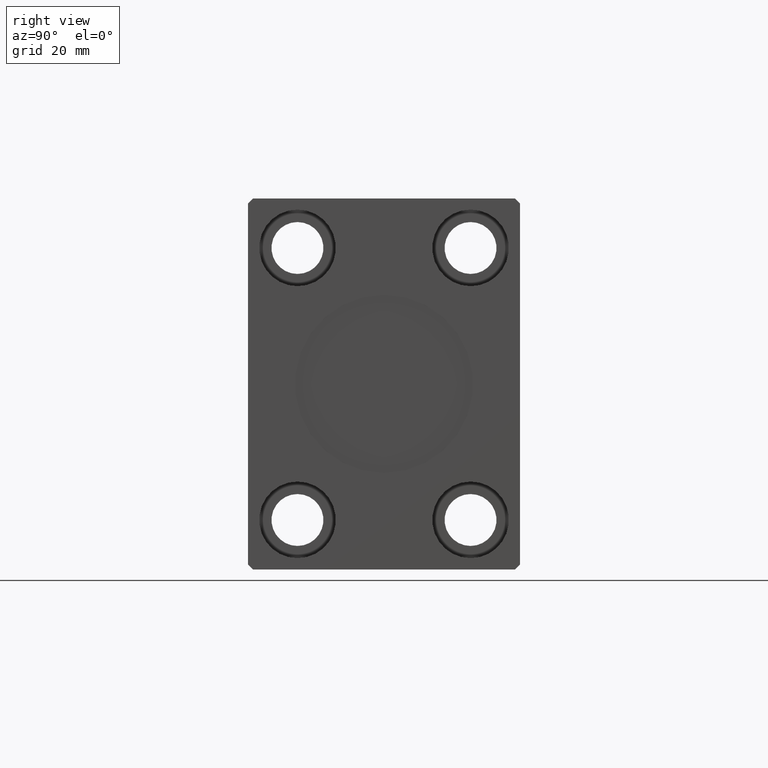
[diagram: clean part render]
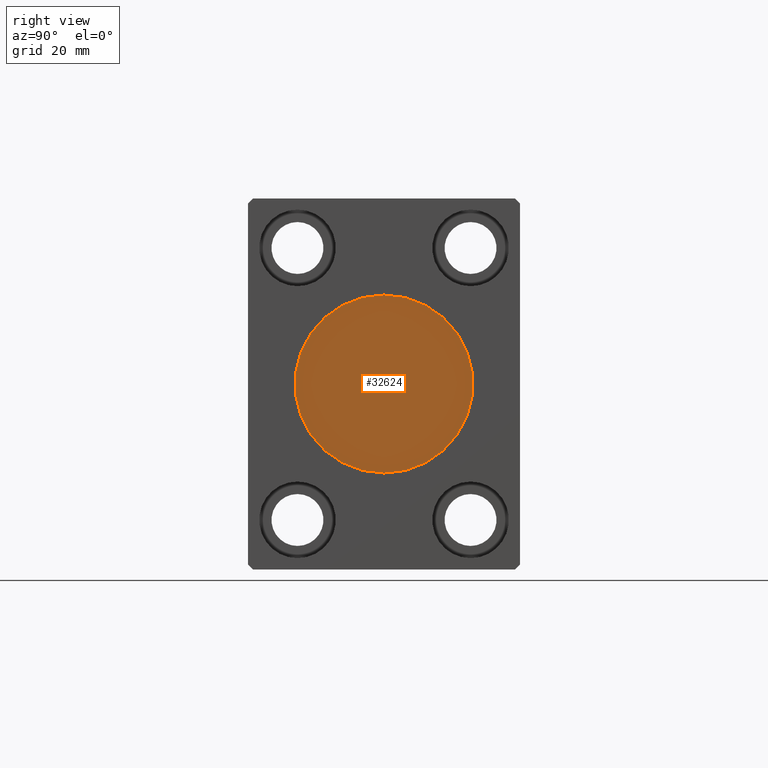
[diagram: same view with one face highlighted and labeled with its STEP entity id]
A machine part, right view. The second image highlights one B-rep face of the part: STEP entity #32624.
In plain terms, the highlighted planar face has unit normal (1, 0, 0).
Its self-contained STEP definition (entity closure, byte-faithful):
#309 = PLANE ( 'NONE',  #21977 ) ;
#2160 = CARTESIAN_POINT ( 'NONE',  ( 114.7999999999999972, 0.000000000000000000, 0.000000000000000000 ) ) ;
#3369 = EDGE_LOOP ( 'NONE', ( #18234, #25928 ) ) ;
#12061 = CARTESIAN_POINT ( 'NONE',  ( 114.7999999999999972, 0.000000000000000000, 0.000000000000000000 ) ) ;
#13459 = DIRECTION ( 'NONE',  ( 0.000000000000000000, 0.000000000000000000, -1.000000000000000000 ) ) ;
#16488 = AXIS2_PLACEMENT_3D ( 'NONE', #12061, #19168, #38359 ) ;
#17873 = CIRCLE ( 'NONE', #29565, 18.00000000000000000 ) ;
#18234 = ORIENTED_EDGE ( 'NONE', *, *, #29376, .T. ) ;
#19168 = DIRECTION ( 'NONE',  ( 1.000000000000000000, 0.000000000000000000, 0.000000000000000000 ) ) ;
#20162 = CARTESIAN_POINT ( 'NONE',  ( 114.7999999999999972, 0.000000000000000000, 0.000000000000000000 ) ) ;
#21145 = DIRECTION ( 'NONE',  ( 0.000000000000000000, 0.000000000000000000, -1.000000000000000000 ) ) ;
#21977 = AXIS2_PLACEMENT_3D ( 'NONE', #20162, #22952, #13459 ) ;
#22952 = DIRECTION ( 'NONE',  ( 1.000000000000000000, 0.000000000000000000, 0.000000000000000000 ) ) ;
#23384 = FACE_OUTER_BOUND ( 'NONE', #3369, .T. ) ;
#25328 = VERTEX_POINT ( 'NONE', #37282 ) ;
#25928 = ORIENTED_EDGE ( 'NONE', *, *, #28749, .T. ) ;
#28749 = EDGE_CURVE ( 'NONE', #41338, #25328, #30267, .T. ) ;
#29376 = EDGE_CURVE ( 'NONE', #25328, #41338, #17873, .T. ) ;
#29565 = AXIS2_PLACEMENT_3D ( 'NONE', #2160, #34484, #21145 ) ;
#30267 = CIRCLE ( 'NONE', #16488, 18.00000000000000000 ) ;
#32624 = ADVANCED_FACE ( 'NONE', ( #23384 ), #309, .T. ) ;
#34484 = DIRECTION ( 'NONE',  ( 1.000000000000000000, 0.000000000000000000, 0.000000000000000000 ) ) ;
#37060 = CARTESIAN_POINT ( 'NONE',  ( 114.7999999999999972, 2.204364238465235428E-15, 18.00000000000000000 ) ) ;
#37282 = CARTESIAN_POINT ( 'NONE',  ( 114.7999999999999972, 0.000000000000000000, -18.00000000000000000 ) ) ;
#38359 = DIRECTION ( 'NONE',  ( 0.000000000000000000, 0.000000000000000000, -1.000000000000000000 ) ) ;
#41338 = VERTEX_POINT ( 'NONE', #37060 ) ;